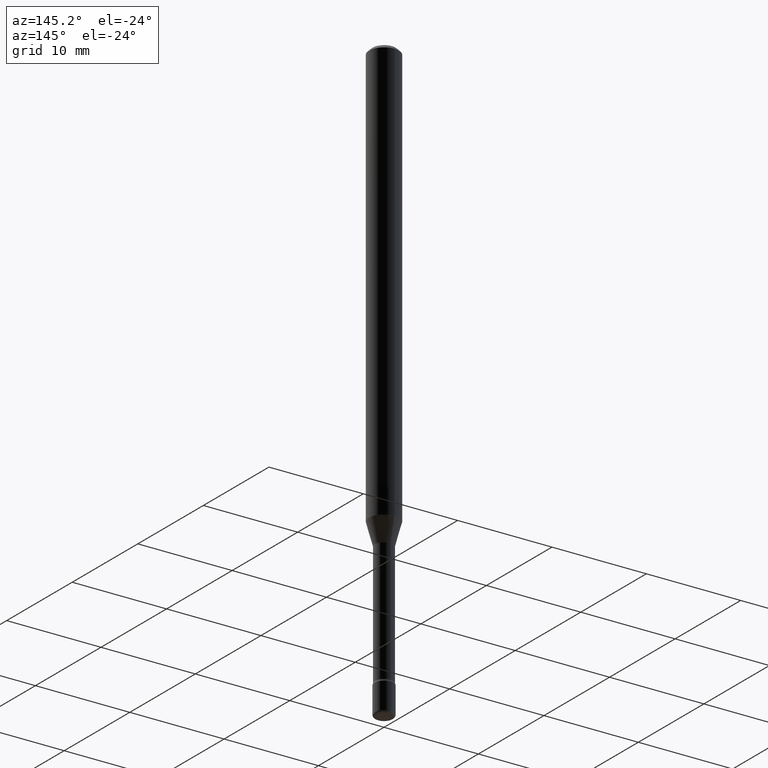
[diagram: clean part render]
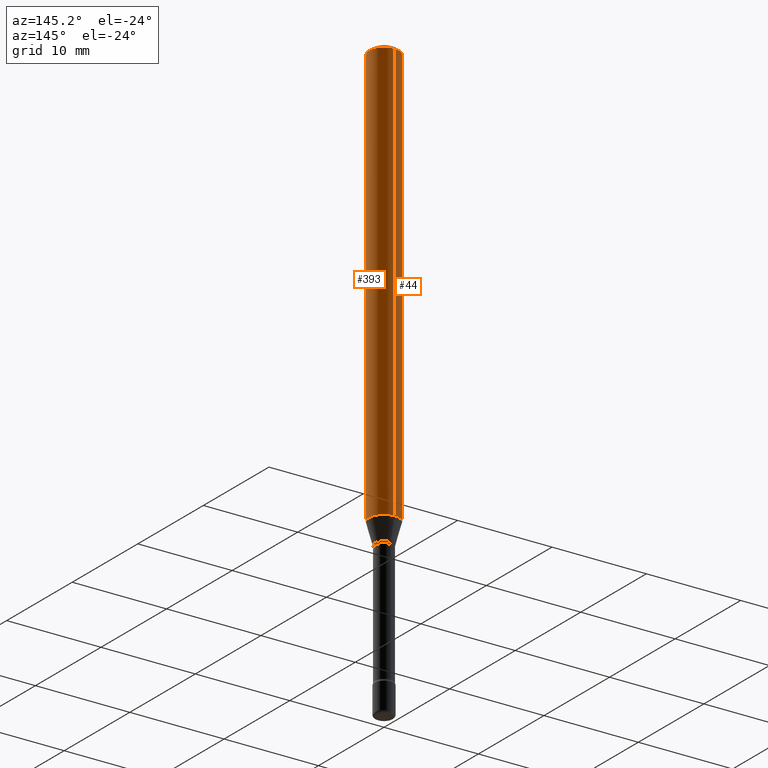
[diagram: same view with one multi-face feature highlighted, each face labeled with its STEP entity id]
A machine part, auxiliary view. The highlighted faces form ONE feature: a constant-radius fillet chain: 2 tangent blend faces with common blend radius 1.5875 mm. The faces share edges in the B-rep.
Their STEP definitions:
[1] entity #44 (Cylinder):
#2 = DIRECTION ( 'NONE',  ( -2.445371158952634038E-29, 3.491621175237824120E-15, 1.000000000000000000 ) ) ;
#5 = ORIENTED_EDGE ( 'NONE', *, *, #225, .T. ) ;
#15 = CARTESIAN_POINT ( 'NONE',  ( -1.169113584055446105E-44, 1.669184350826100908E-30, 4.780733988912460139E-16 ) ) ;
#37 = CARTESIAN_POINT ( 'NONE',  ( -4.364351673553912750E-16, -0.06250000000000005551, -0.01499999999999981036 ) ) ;
#44 = ADVANCED_FACE ( 'NONE', ( #453 ), #188, .T. ) ;
#50 = AXIS2_PLACEMENT_3D ( 'NONE', #153, #461, #330 ) ;
#77 = CIRCLE ( 'NONE', #50, 0.06250000000000000000 ) ;
#91 = CARTESIAN_POINT ( 'NONE',  ( 4.440892098501060035E-16, 0.06249999999999995143, -0.01500000000000024578 ) ) ;
#105 = EDGE_LOOP ( 'NONE', ( #345, #5, #422, #315 ) ) ;
#138 = VERTEX_POINT ( 'NONE', #506 ) ;
#153 = CARTESIAN_POINT ( 'NONE',  ( 3.668056738428958326E-31, -5.237431762856745967E-17, -0.01500000000000002720 ) ) ;
#188 = CYLINDRICAL_SURFACE ( 'NONE', #337, 0.06250000000000000000 ) ;
#225 = EDGE_CURVE ( 'NONE', #287, #138, #256, .T. ) ;
#233 = DIRECTION ( 'NONE',  ( -2.445371158952634318E-29, 3.491621175237824120E-15, 1.000000000000000000 ) ) ;
#235 = CARTESIAN_POINT ( 'NONE',  ( 4.440892098501054119E-16, 0.06249999999999378969, -1.767071934891535356 ) ) ;
#236 = VECTOR ( 'NONE', #448, 39.37007874015748143 ) ;
#246 = AXIS2_PLACEMENT_3D ( 'NONE', #279, #328, #372 ) ;
#256 = CIRCLE ( 'NONE', #246, 0.06250000000000000000 ) ;
#258 = CARTESIAN_POINT ( 'NONE',  ( 4.440892098500625669E-16, 0.06250000000000000000, 2.598470754388820311E-16 ) ) ;
#268 = DIRECTION ( 'NONE',  ( -6.982962677686265922E-15, -1.000000000000000000, 3.491621175237823726E-15 ) ) ;
#279 = CARTESIAN_POINT ( 'NONE',  ( 4.321146745378387312E-29, -6.169945786035756987E-15, -1.767071934891535134 ) ) ;
#287 = VERTEX_POINT ( 'NONE', #235 ) ;
#309 = CARTESIAN_POINT ( 'NONE',  ( -4.364351673553916201E-16, -0.06250000000000000000, 6.962997223436100461E-16 ) ) ;
#315 = ORIENTED_EDGE ( 'NONE', *, *, #480, .F. ) ;
#328 = DIRECTION ( 'NONE',  ( -2.445371158952634318E-29, 3.491621175237824120E-15, 1.000000000000000000 ) ) ;
#330 = DIRECTION ( 'NONE',  ( -6.982962677686265922E-15, -1.000000000000000000, 3.483106191921935554E-15 ) ) ;
#337 = AXIS2_PLACEMENT_3D ( 'NONE', #15, #233, #268 ) ;
#345 = ORIENTED_EDGE ( 'NONE', *, *, #534, .F. ) ;
#362 = VERTEX_POINT ( 'NONE', #37 ) ;
#372 = DIRECTION ( 'NONE',  ( -6.982962677686265922E-15, -1.000000000000000000, 4.370956789862821150E-15 ) ) ;
#403 = EDGE_CURVE ( 'NONE', #138, #362, #410, .T. ) ;
#408 = VERTEX_POINT ( 'NONE', #91 ) ;
#410 = LINE ( 'NONE', #309, #236 ) ;
#422 = ORIENTED_EDGE ( 'NONE', *, *, #403, .T. ) ;
#446 = VECTOR ( 'NONE', #2, 39.37007874015748143 ) ;
#448 = DIRECTION ( 'NONE',  ( -2.445371158952634038E-29, 3.491621175237824120E-15, 1.000000000000000000 ) ) ;
#453 = FACE_OUTER_BOUND ( 'NONE', #105, .T. ) ;
#461 = DIRECTION ( 'NONE',  ( -2.445371158952634318E-29, 3.491621175237824120E-15, 1.000000000000000000 ) ) ;
#476 = LINE ( 'NONE', #258, #446 ) ;
#480 = EDGE_CURVE ( 'NONE', #408, #362, #77, .T. ) ;
#506 = CARTESIAN_POINT ( 'NONE',  ( -4.364351673553487258E-16, -0.06250000000000620337, -1.767071934891534912 ) ) ;
#534 = EDGE_CURVE ( 'NONE', #287, #408, #476, .T. ) ;
[2] entity #393 (Cylinder):
#2 = DIRECTION ( 'NONE',  ( -2.445371158952634038E-29, 3.491621175237824120E-15, 1.000000000000000000 ) ) ;
#7 = CARTESIAN_POINT ( 'NONE',  ( -1.169113584055446105E-44, 1.669184350826100908E-30, 4.780733988912460139E-16 ) ) ;
#37 = CARTESIAN_POINT ( 'NONE',  ( -4.364351673553912750E-16, -0.06250000000000005551, -0.01499999999999981036 ) ) ;
#66 = DIRECTION ( 'NONE',  ( -2.445371158952634318E-29, 3.491621175237824120E-15, 1.000000000000000000 ) ) ;
#91 = CARTESIAN_POINT ( 'NONE',  ( 4.440892098501060035E-16, 0.06249999999999995143, -0.01500000000000024578 ) ) ;
#95 = EDGE_CURVE ( 'NONE', #362, #408, #522, .T. ) ;
#113 = CARTESIAN_POINT ( 'NONE',  ( 4.321146745378387312E-29, -6.169945786035756987E-15, -1.767071934891535134 ) ) ;
#116 = DIRECTION ( 'NONE',  ( -6.982962677686265922E-15, -1.000000000000000000, 4.370956789862821150E-15 ) ) ;
#138 = VERTEX_POINT ( 'NONE', #506 ) ;
#142 = DIRECTION ( 'NONE',  ( -6.982962677686265922E-15, -1.000000000000000000, 3.491621175237823726E-15 ) ) ;
#210 = EDGE_LOOP ( 'NONE', ( #216, #371, #516, #394 ) ) ;
#216 = ORIENTED_EDGE ( 'NONE', *, *, #474, .T. ) ;
#235 = CARTESIAN_POINT ( 'NONE',  ( 4.440892098501054119E-16, 0.06249999999999378969, -1.767071934891535356 ) ) ;
#236 = VECTOR ( 'NONE', #448, 39.37007874015748143 ) ;
#258 = CARTESIAN_POINT ( 'NONE',  ( 4.440892098500625669E-16, 0.06250000000000000000, 2.598470754388820311E-16 ) ) ;
#272 = DIRECTION ( 'NONE',  ( -2.445371158952634318E-29, 3.491621175237824120E-15, 1.000000000000000000 ) ) ;
#274 = AXIS2_PLACEMENT_3D ( 'NONE', #311, #272, #487 ) ;
#287 = VERTEX_POINT ( 'NONE', #235 ) ;
#309 = CARTESIAN_POINT ( 'NONE',  ( -4.364351673553916201E-16, -0.06250000000000000000, 6.962997223436100461E-16 ) ) ;
#311 = CARTESIAN_POINT ( 'NONE',  ( 3.668056738428958326E-31, -5.237431762856745967E-17, -0.01500000000000002720 ) ) ;
#317 = AXIS2_PLACEMENT_3D ( 'NONE', #113, #552, #116 ) ;
#362 = VERTEX_POINT ( 'NONE', #37 ) ;
#371 = ORIENTED_EDGE ( 'NONE', *, *, #534, .T. ) ;
#388 = AXIS2_PLACEMENT_3D ( 'NONE', #7, #66, #142 ) ;
#393 = ADVANCED_FACE ( 'NONE', ( #542 ), #482, .T. ) ;
#394 = ORIENTED_EDGE ( 'NONE', *, *, #403, .F. ) ;
#403 = EDGE_CURVE ( 'NONE', #138, #362, #410, .T. ) ;
#408 = VERTEX_POINT ( 'NONE', #91 ) ;
#410 = LINE ( 'NONE', #309, #236 ) ;
#446 = VECTOR ( 'NONE', #2, 39.37007874015748143 ) ;
#448 = DIRECTION ( 'NONE',  ( -2.445371158952634038E-29, 3.491621175237824120E-15, 1.000000000000000000 ) ) ;
#474 = EDGE_CURVE ( 'NONE', #138, #287, #492, .T. ) ;
#476 = LINE ( 'NONE', #258, #446 ) ;
#482 = CYLINDRICAL_SURFACE ( 'NONE', #388, 0.06250000000000000000 ) ;
#487 = DIRECTION ( 'NONE',  ( -6.982962677686265922E-15, -1.000000000000000000, 3.483106191921935554E-15 ) ) ;
#492 = CIRCLE ( 'NONE', #317, 0.06250000000000000000 ) ;
#506 = CARTESIAN_POINT ( 'NONE',  ( -4.364351673553487258E-16, -0.06250000000000620337, -1.767071934891534912 ) ) ;
#516 = ORIENTED_EDGE ( 'NONE', *, *, #95, .F. ) ;
#522 = CIRCLE ( 'NONE', #274, 0.06250000000000000000 ) ;
#534 = EDGE_CURVE ( 'NONE', #287, #408, #476, .T. ) ;
#542 = FACE_OUTER_BOUND ( 'NONE', #210, .T. ) ;
#552 = DIRECTION ( 'NONE',  ( -2.445371158952634318E-29, 3.491621175237824120E-15, 1.000000000000000000 ) ) ;